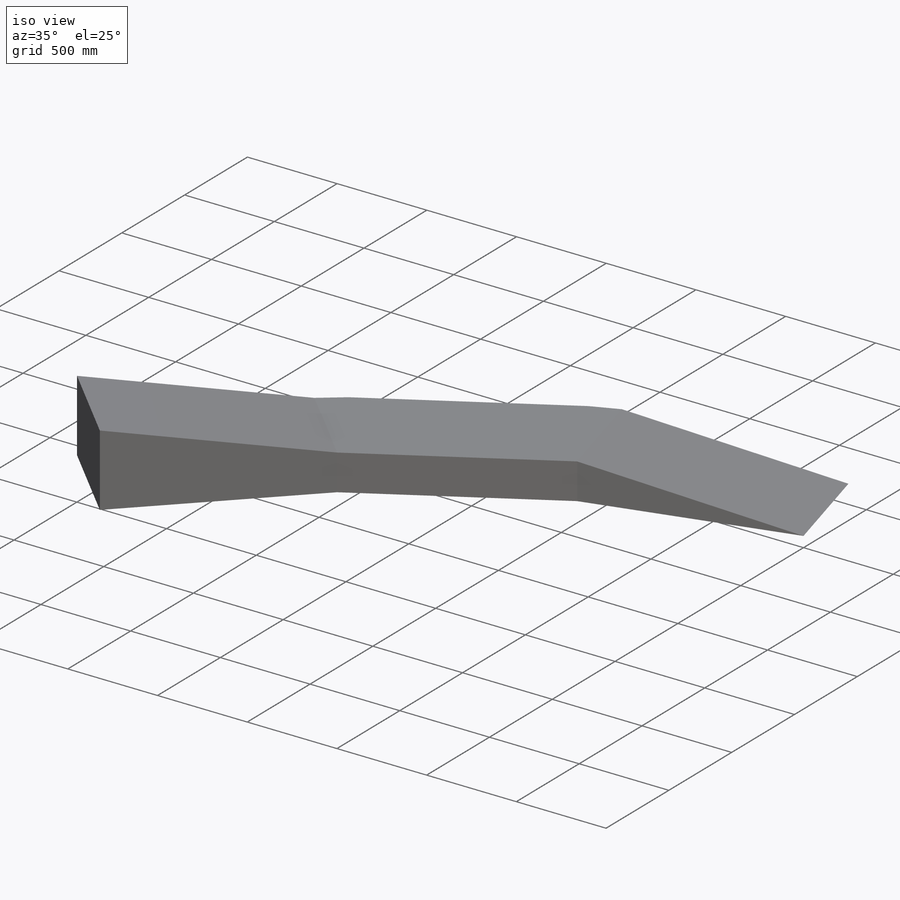
[diagram: iso view]
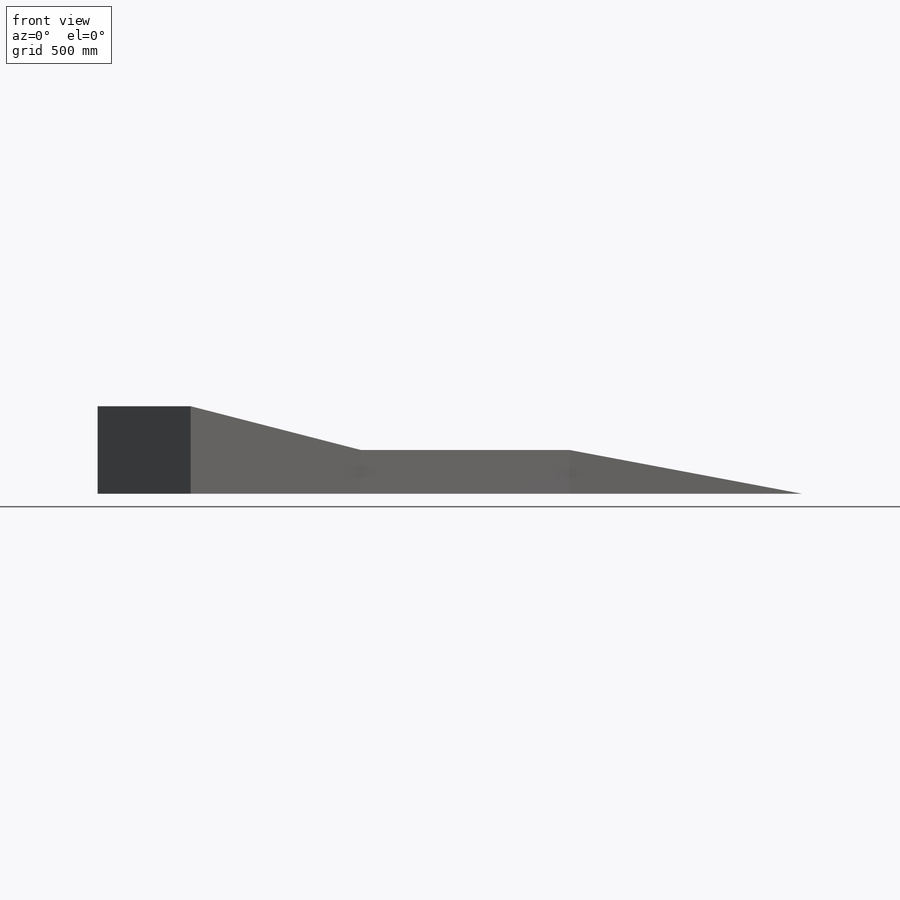
[diagram: front view]
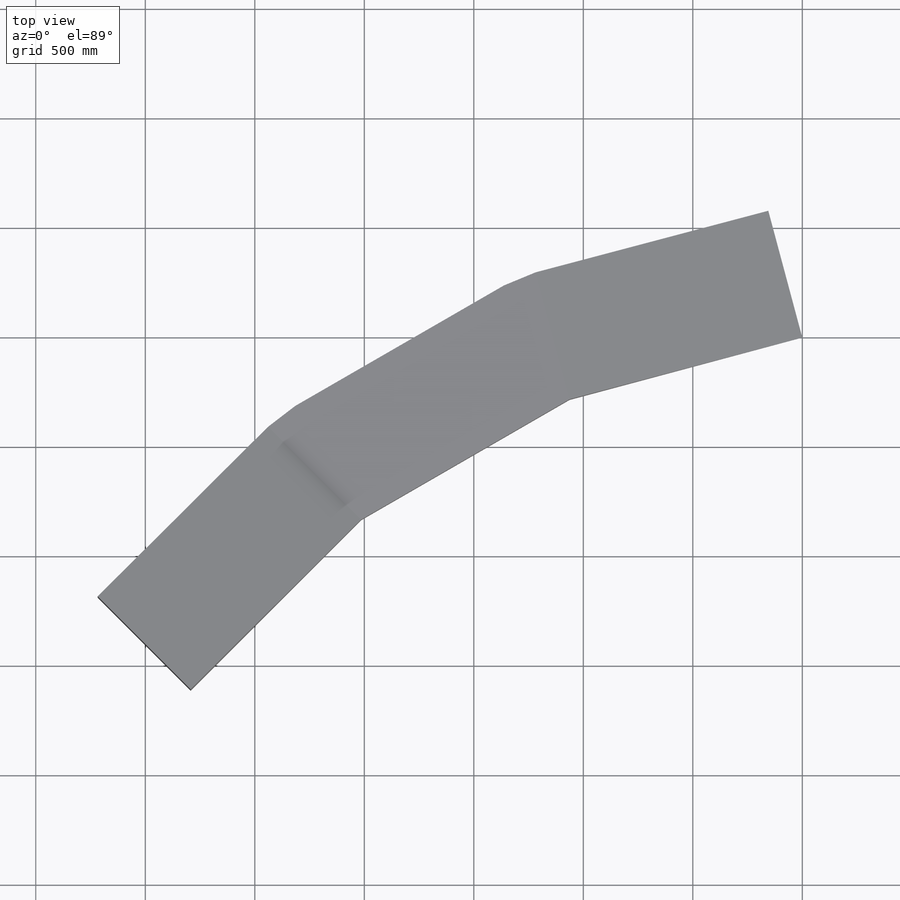
[diagram: top view]
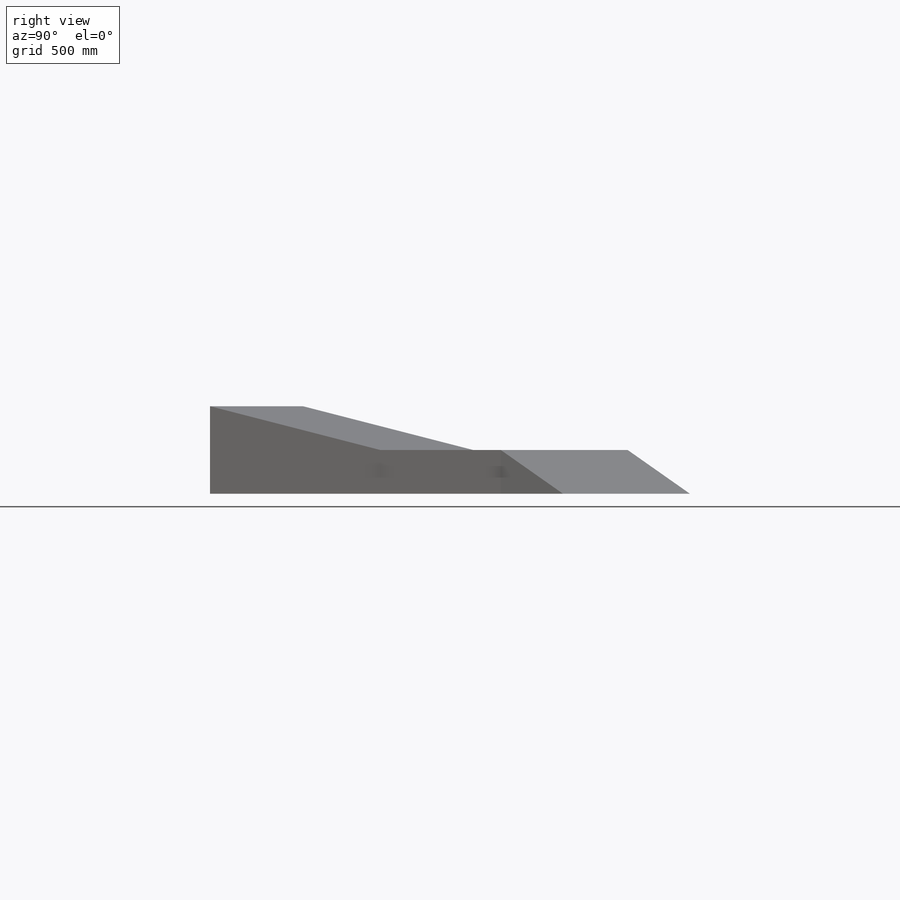
[diagram: right view]
SOLIDWORKS PART (.sldprt)
format: sldprt  version: not decoded by parser v0  size: 232,448 bytes
history: native  units: mm
features: sketch x8, cut_extrude x6, material x1, extrude x1 (+13 scaffold rows collapsed)
feature tree (29):
  scaffold x13  (default folders/planes/origin — collapsed)
  material  "Material <not specified>"
  sketch  "Sketch1"  dims[c1.D1=1100.0mm c2.D1=165.0deg c3.D1=600.0mm c4.D1=105.0deg c5.D1=1100.0mm c6.D1=150.0deg c7.D1=1100.0mm c8.D1=150.0deg c9.D1=1100.0mm c10.D1=135.0deg c11.D1=1100.0mm c12.D1=135.0deg c13.D1=1100.0mm c14.D1=0.0deg]
  extrude  "Boss-Extrude1"  Depth=600mm
  sketch  "Sketch24"
  cut_extrude  "Cut-Extrude1"  Depth=600mm
  sketch  "Sketch25"  dims[D1=200.0mm]
  cut_extrude  "Cut-Extrude2"  Depth=600mm
  sketch  "Sketch26"
  cut_extrude  "Cut-Extrude3"  Depth=600mm
  sketch  "Sketch27"
  cut_extrude  "Cut-Extrude4"  Depth=600mm
  sketch  "Sketch28"  dims[D1=200.0mm]
  sketch  "Sketch30"
  cut_extrude  "Cut-Extrude6"  Depth=400mm
  sketch  "Sketch31"
  cut_extrude  "Cut-Extrude7"  Depth=600mm
decode coverage: 10 of 15 modeling features carry decoded parameters
note: suppression state not decoded; provenance and decode notes live in map.json
